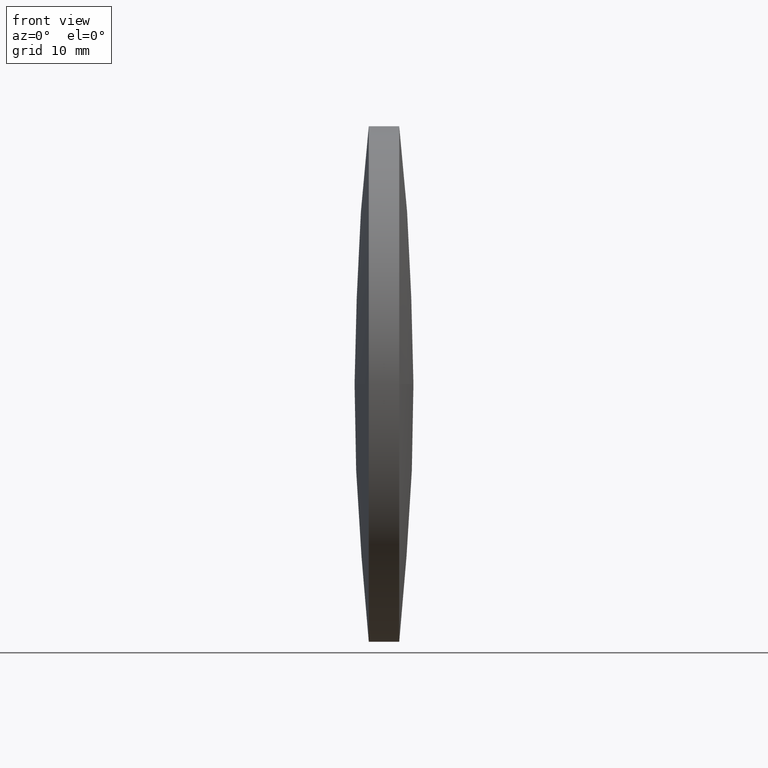
[diagram: clean part render]
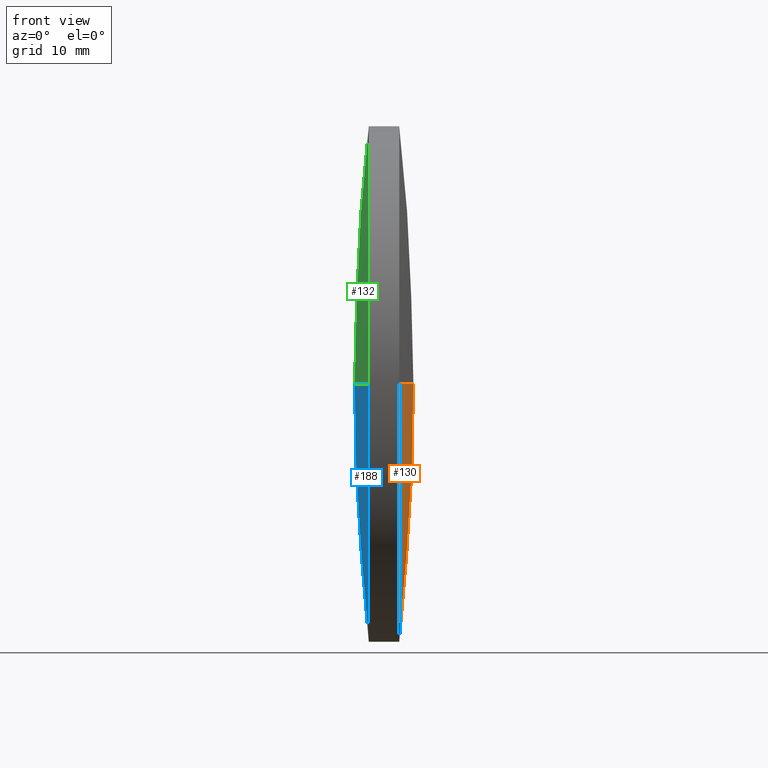
[diagram: same view with three faces highlighted in distinct colors, each labeled with its STEP entity id]
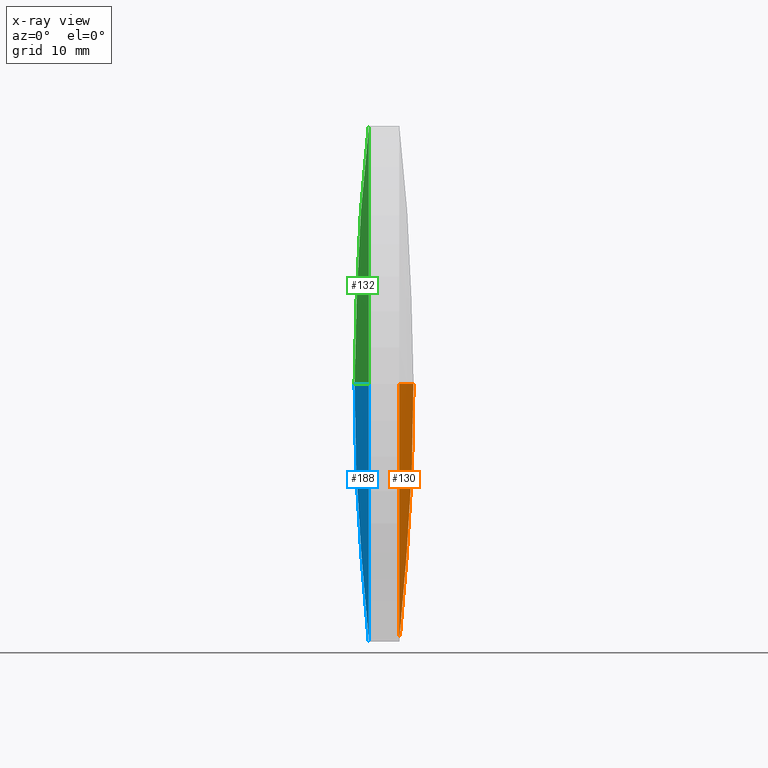
[diagram: x-ray of the same camera — body ghosted, the three highlighted faces saturated]
A machine part, front view with three faces highlighted in distinct colors.
The next image is the same camera in x-ray (body ghosted, the three faces saturated) — at least one of them is partly hidden behind the body in this view.
Their STEP definitions:

[orange] entity #130 — the highlighted spherical surface has radius 231.118 mm.
#3 = DIRECTION ( 'NONE',  ( 0.0000000000000000000, 0.0000000000000000000, 1.000000000000000000 ) ) ;
#12 = AXIS2_PLACEMENT_3D ( 'NONE', #57, #240, #84 ) ;
#15 = SPHERICAL_SURFACE ( 'NONE', #189, 231.1183175053913000 ) ;
#21 = ORIENTED_EDGE ( 'NONE', *, *, #230, .T. ) ;
#33 = DIRECTION ( 'NONE',  ( -1.000000000000000000, -0.0000000000000000000, -0.0000000000000000000 ) ) ;
#34 = ORIENTED_EDGE ( 'NONE', *, *, #234, .F. ) ;
#43 = AXIS2_PLACEMENT_3D ( 'NONE', #248, #265, #247 ) ;
#49 = CIRCLE ( 'NONE', #43, 231.1183175053913000 ) ;
#57 = CARTESIAN_POINT ( 'NONE',  ( -55.30197567035203600, 97.23222604636875100, 0.0000000000000000000 ) ) ;
#71 = CIRCLE ( 'NONE', #12, 231.1183175053913300 ) ;
#73 = ORIENTED_EDGE ( 'NONE', *, *, #279, .F. ) ;
#84 = DIRECTION ( 'NONE',  ( 0.0000000000000000000, 1.000000000000000000, 1.224646799147353000E-016 ) ) ;
#91 = DIRECTION ( 'NONE',  ( 0.0000000000000000000, 0.0000000000000000000, 1.000000000000000000 ) ) ;
#109 = CARTESIAN_POINT ( 'NONE',  ( 174.4163664064679700, 71.83222604636924300, -3.110602869834216900E-015 ) ) ;
#112 = CARTESIAN_POINT ( 'NONE',  ( 174.4163664064679400, 97.23222604636956100, -25.39999999999999100 ) ) ;
#123 = CIRCLE ( 'NONE', #306, 25.39999999999999100 ) ;
#130 = ADVANCED_FACE ( 'NONE', ( #190 ), #15, .T. ) ;
#138 = VERTEX_POINT ( 'NONE', #287 ) ;
#167 = VERTEX_POINT ( 'NONE', #109 ) ;
#178 = VERTEX_POINT ( 'NONE', #214 ) ;
#189 = AXIS2_PLACEMENT_3D ( 'NONE', #192, #218, #291 ) ;
#190 = FACE_OUTER_BOUND ( 'NONE', #308, .T. ) ;
#192 = CARTESIAN_POINT ( 'NONE',  ( -55.30197567035203600, 97.23222604636875100, 0.0000000000000000000 ) ) ;
#214 = CARTESIAN_POINT ( 'NONE',  ( 174.4163664064679700, 122.6322260463690700, 0.0000000000000000000 ) ) ;
#217 = VERTEX_POINT ( 'NONE', #112 ) ;
#218 = DIRECTION ( 'NONE',  ( -0.0000000000000000000, 0.0000000000000000000, -1.000000000000000000 ) ) ;
#220 = DIRECTION ( 'NONE',  ( -1.000000000000000000, -0.0000000000000000000, -0.0000000000000000000 ) ) ;
#226 = CIRCLE ( 'NONE', #343, 25.39999999999999100 ) ;
#230 = EDGE_CURVE ( 'NONE', #138, #167, #71, .T. ) ;
#234 = EDGE_CURVE ( 'NONE', #178, #217, #123, .T. ) ;
#240 = DIRECTION ( 'NONE',  ( 0.0000000000000000000, 1.224646799147353200E-016, -1.000000000000000000 ) ) ;
#241 = EDGE_CURVE ( 'NONE', #217, #167, #226, .T. ) ;
#246 = CARTESIAN_POINT ( 'NONE',  ( 174.4163664064679400, 97.23222604636956100, 0.0000000000000000000 ) ) ;
#247 = DIRECTION ( 'NONE',  ( 1.000000000000000000, 0.0000000000000000000, 0.0000000000000000000 ) ) ;
#248 = CARTESIAN_POINT ( 'NONE',  ( -55.30197567035203600, 97.23222604636875100, 0.0000000000000000000 ) ) ;
#265 = DIRECTION ( 'NONE',  ( -0.0000000000000000000, 0.0000000000000000000, 1.000000000000000000 ) ) ;
#278 = ORIENTED_EDGE ( 'NONE', *, *, #241, .F. ) ;
#279 = EDGE_CURVE ( 'NONE', #138, #178, #49, .T. ) ;
#287 = CARTESIAN_POINT ( 'NONE',  ( 175.8163418350392800, 97.23222604636876600, 0.0000000000000000000 ) ) ;
#291 = DIRECTION ( 'NONE',  ( 0.0000000000000000000, 1.000000000000000000, 0.0000000000000000000 ) ) ;
#306 = AXIS2_PLACEMENT_3D ( 'NONE', #322, #220, #3 ) ;
#308 = EDGE_LOOP ( 'NONE', ( #73, #21, #278, #34 ) ) ;
#322 = CARTESIAN_POINT ( 'NONE',  ( 174.4163664064679400, 97.23222604636956100, 0.0000000000000000000 ) ) ;
#343 = AXIS2_PLACEMENT_3D ( 'NONE', #246, #33, #91 ) ;

[blue] entity #188 — the highlighted spherical surface has radius 231.118 mm.
#16 = EDGE_CURVE ( 'NONE', #157, #288, #267, .T. ) ;
#17 = VERTEX_POINT ( 'NONE', #187 ) ;
#19 = AXIS2_PLACEMENT_3D ( 'NONE', #257, #281, #129 ) ;
#53 = DIRECTION ( 'NONE',  ( 0.0000000000000000000, 0.0000000000000000000, 1.000000000000000000 ) ) ;
#54 = DIRECTION ( 'NONE',  ( -0.0000000000000000000, 0.0000000000000000000, -1.000000000000000000 ) ) ;
#59 = DIRECTION ( 'NONE',  ( -1.000000000000000000, -0.0000000000000000000, -0.0000000000000000000 ) ) ;
#62 = DIRECTION ( 'NONE',  ( -1.000000000000000000, -0.0000000000000000000, -0.0000000000000000000 ) ) ;
#74 = EDGE_LOOP ( 'NONE', ( #223, #113, #229, #245 ) ) ;
#75 = AXIS2_PLACEMENT_3D ( 'NONE', #199, #62, #249 ) ;
#82 = CARTESIAN_POINT ( 'NONE',  ( 401.1347507690027200, 97.23222604636905000, 0.0000000000000000000 ) ) ;
#100 = VERTEX_POINT ( 'NONE', #235 ) ;
#110 = FACE_OUTER_BOUND ( 'NONE', #74, .T. ) ;
#113 = ORIENTED_EDGE ( 'NONE', *, *, #164, .T. ) ;
#126 = EDGE_CURVE ( 'NONE', #17, #288, #186, .T. ) ;
#129 = DIRECTION ( 'NONE',  ( 1.000000000000000000, 0.0000000000000000000, 0.0000000000000000000 ) ) ;
#135 = DIRECTION ( 'NONE',  ( 0.0000000000000000000, 1.000000000000000000, 0.0000000000000000000 ) ) ;
#137 = AXIS2_PLACEMENT_3D ( 'NONE', #82, #54, #135 ) ;
#157 = VERTEX_POINT ( 'NONE', #242 ) ;
#163 = CARTESIAN_POINT ( 'NONE',  ( 401.1347507690027200, 97.23222604636905000, 0.0000000000000000000 ) ) ;
#164 = EDGE_CURVE ( 'NONE', #100, #17, #216, .T. ) ;
#186 = CIRCLE ( 'NONE', #271, 231.1183175053918400 ) ;
#187 = CARTESIAN_POINT ( 'NONE',  ( 171.4164086921822200, 71.83222604636939900, -3.110602869834235400E-015 ) ) ;
#188 = ADVANCED_FACE ( 'NONE', ( #110 ), #324, .T. ) ;
#191 = DIRECTION ( 'NONE',  ( 0.0000000000000000000, 1.224646799147353200E-016, -1.000000000000000000 ) ) ;
#195 = DIRECTION ( 'NONE',  ( 0.0000000000000000000, 1.000000000000000000, 1.224646799147353200E-016 ) ) ;
#199 = CARTESIAN_POINT ( 'NONE',  ( 171.4164086921822200, 97.23222604636956100, 0.0000000000000000000 ) ) ;
#216 = CIRCLE ( 'NONE', #284, 25.39999999999999100 ) ;
#223 = ORIENTED_EDGE ( 'NONE', *, *, #316, .T. ) ;
#229 = ORIENTED_EDGE ( 'NONE', *, *, #126, .T. ) ;
#235 = CARTESIAN_POINT ( 'NONE',  ( 171.4164086921822200, 97.23222604636956100, -25.39999999999999100 ) ) ;
#242 = CARTESIAN_POINT ( 'NONE',  ( 171.4164086921822200, 122.6322260463692300, 0.0000000000000000000 ) ) ;
#245 = ORIENTED_EDGE ( 'NONE', *, *, #16, .F. ) ;
#249 = DIRECTION ( 'NONE',  ( 0.0000000000000000000, 0.0000000000000000000, 1.000000000000000000 ) ) ;
#257 = CARTESIAN_POINT ( 'NONE',  ( 401.1347507690027200, 97.23222604636905000, 0.0000000000000000000 ) ) ;
#267 = CIRCLE ( 'NONE', #19, 231.1183175053918100 ) ;
#271 = AXIS2_PLACEMENT_3D ( 'NONE', #163, #191, #195 ) ;
#281 = DIRECTION ( 'NONE',  ( -0.0000000000000000000, 0.0000000000000000000, 1.000000000000000000 ) ) ;
#284 = AXIS2_PLACEMENT_3D ( 'NONE', #344, #59, #53 ) ;
#288 = VERTEX_POINT ( 'NONE', #318 ) ;
#310 = CIRCLE ( 'NONE', #75, 25.39999999999999100 ) ;
#316 = EDGE_CURVE ( 'NONE', #157, #100, #310, .T. ) ;
#318 = CARTESIAN_POINT ( 'NONE',  ( 170.0164332636108800, 97.23222604636906400, 0.0000000000000000000 ) ) ;
#324 = SPHERICAL_SURFACE ( 'NONE', #137, 231.1183175053918400 ) ;
#344 = CARTESIAN_POINT ( 'NONE',  ( 171.4164086921822200, 97.23222604636956100, 0.0000000000000000000 ) ) ;

[green] entity #132 — the highlighted spherical surface has radius 231.118 mm.
#16 = EDGE_CURVE ( 'NONE', #157, #288, #267, .T. ) ;
#17 = VERTEX_POINT ( 'NONE', #187 ) ;
#19 = AXIS2_PLACEMENT_3D ( 'NONE', #257, #281, #129 ) ;
#29 = CIRCLE ( 'NONE', #327, 25.39999999999999100 ) ;
#30 = DIRECTION ( 'NONE',  ( -1.000000000000000000, -0.0000000000000000000, -0.0000000000000000000 ) ) ;
#36 = DIRECTION ( 'NONE',  ( 0.0000000000000000000, 0.0000000000000000000, 1.000000000000000000 ) ) ;
#45 = EDGE_LOOP ( 'NONE', ( #104, #211, #274, #258 ) ) ;
#99 = EDGE_CURVE ( 'NONE', #17, #128, #29, .T. ) ;
#104 = ORIENTED_EDGE ( 'NONE', *, *, #126, .F. ) ;
#114 = SPHERICAL_SURFACE ( 'NONE', #289, 231.1183175053918400 ) ;
#126 = EDGE_CURVE ( 'NONE', #17, #288, #186, .T. ) ;
#128 = VERTEX_POINT ( 'NONE', #262 ) ;
#129 = DIRECTION ( 'NONE',  ( 1.000000000000000000, 0.0000000000000000000, 0.0000000000000000000 ) ) ;
#132 = ADVANCED_FACE ( 'NONE', ( #330 ), #114, .T. ) ;
#139 = CARTESIAN_POINT ( 'NONE',  ( 401.1347507690027200, 97.23222604636905000, 0.0000000000000000000 ) ) ;
#157 = VERTEX_POINT ( 'NONE', #242 ) ;
#163 = CARTESIAN_POINT ( 'NONE',  ( 401.1347507690027200, 97.23222604636905000, 0.0000000000000000000 ) ) ;
#186 = CIRCLE ( 'NONE', #271, 231.1183175053918400 ) ;
#187 = CARTESIAN_POINT ( 'NONE',  ( 171.4164086921822200, 71.83222604636939900, -3.110602869834235400E-015 ) ) ;
#191 = DIRECTION ( 'NONE',  ( 0.0000000000000000000, 1.224646799147353200E-016, -1.000000000000000000 ) ) ;
#194 = CIRCLE ( 'NONE', #201, 25.39999999999999100 ) ;
#195 = DIRECTION ( 'NONE',  ( 0.0000000000000000000, 1.000000000000000000, 1.224646799147353200E-016 ) ) ;
#201 = AXIS2_PLACEMENT_3D ( 'NONE', #268, #225, #36 ) ;
#211 = ORIENTED_EDGE ( 'NONE', *, *, #99, .T. ) ;
#215 = DIRECTION ( 'NONE',  ( -0.0000000000000000000, 0.0000000000000000000, -1.000000000000000000 ) ) ;
#225 = DIRECTION ( 'NONE',  ( -1.000000000000000000, -0.0000000000000000000, -0.0000000000000000000 ) ) ;
#242 = CARTESIAN_POINT ( 'NONE',  ( 171.4164086921822200, 122.6322260463692300, 0.0000000000000000000 ) ) ;
#257 = CARTESIAN_POINT ( 'NONE',  ( 401.1347507690027200, 97.23222604636905000, 0.0000000000000000000 ) ) ;
#258 = ORIENTED_EDGE ( 'NONE', *, *, #16, .T. ) ;
#262 = CARTESIAN_POINT ( 'NONE',  ( 171.4164086921822200, 97.23222604636956100, 25.39999999999999100 ) ) ;
#267 = CIRCLE ( 'NONE', #19, 231.1183175053918100 ) ;
#268 = CARTESIAN_POINT ( 'NONE',  ( 171.4164086921822200, 97.23222604636956100, 0.0000000000000000000 ) ) ;
#271 = AXIS2_PLACEMENT_3D ( 'NONE', #163, #191, #195 ) ;
#274 = ORIENTED_EDGE ( 'NONE', *, *, #298, .T. ) ;
#281 = DIRECTION ( 'NONE',  ( -0.0000000000000000000, 0.0000000000000000000, 1.000000000000000000 ) ) ;
#288 = VERTEX_POINT ( 'NONE', #318 ) ;
#289 = AXIS2_PLACEMENT_3D ( 'NONE', #139, #215, #340 ) ;
#298 = EDGE_CURVE ( 'NONE', #128, #157, #194, .T. ) ;
#318 = CARTESIAN_POINT ( 'NONE',  ( 170.0164332636108800, 97.23222604636906400, 0.0000000000000000000 ) ) ;
#320 = CARTESIAN_POINT ( 'NONE',  ( 171.4164086921822200, 97.23222604636956100, 0.0000000000000000000 ) ) ;
#327 = AXIS2_PLACEMENT_3D ( 'NONE', #320, #30, #341 ) ;
#330 = FACE_OUTER_BOUND ( 'NONE', #45, .T. ) ;
#340 = DIRECTION ( 'NONE',  ( 0.0000000000000000000, 1.000000000000000000, 0.0000000000000000000 ) ) ;
#341 = DIRECTION ( 'NONE',  ( 0.0000000000000000000, 0.0000000000000000000, 1.000000000000000000 ) ) ;